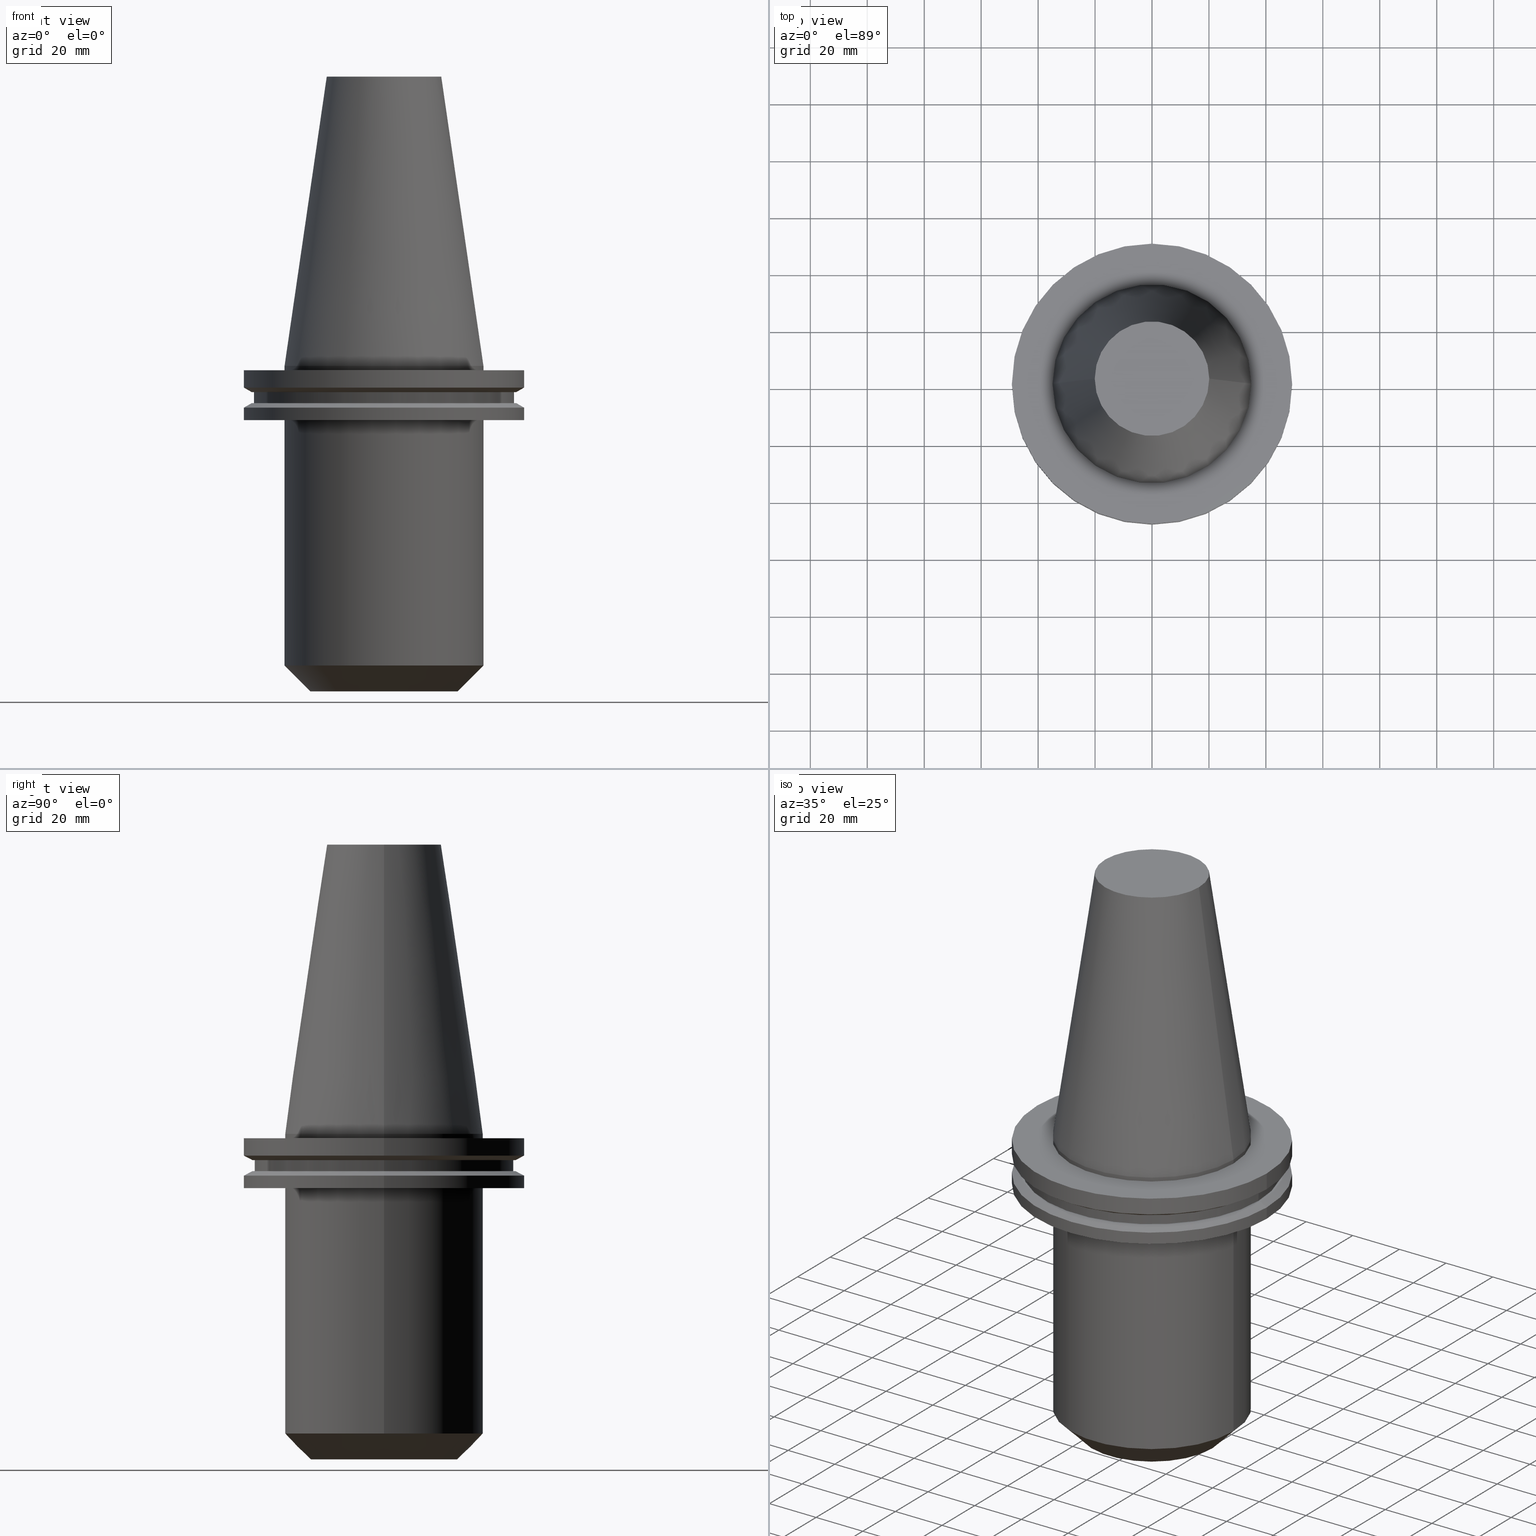
[diagram: canonical four-view strip — front | top / right | iso, engineering-drawing reading convention]
A machine part, canonical four-view strip (front | top / right | iso — engineering-drawing reading convention). The complete STEP part file that produces these views, byte-faithful:
ISO-10303-21;
HEADER;
FILE_DESCRIPTION (( 'STEP AP203' ),
    '1' );
FILE_NAME ('BCV50-EM1_500-4_5.stp',
    '2022-03-03T16:48:07',
    ( '' ),
    ( '' ),
    'SwSTEP 2.0',
    'SolidWorks 2021',
    '' );
FILE_SCHEMA (( 'CONFIG_CONTROL_DESIGN' ));
ENDSEC;

DATA;
#1 = CARTESIAN_POINT ( 'NONE',  ( 0.000000000000000000, 0.000000000000000000, 0.000000000000000000 ) ) ;
#2 = ORIENTED_EDGE ( 'NONE', *, *, #412, .T. ) ;
#3 = APPROVAL ( #360, 'UNSPECIFIED' ) ;
#4 = DIRECTION ( 'NONE',  ( 1.000000000000000000, 0.000000000000000000, 0.000000000000000000 ) ) ;
#5 = DIRECTION ( 'NONE',  ( 1.000000000000000000, 0.000000000000000000, 0.000000000000000000 ) ) ;
#6 = ORIENTED_EDGE ( 'NONE', *, *, #525, .T. ) ;
#7 = EDGE_CURVE ( 'NONE', #391, #542, #632, .T. ) ;
#8 = PERSON_AND_ORGANIZATION ( #341, #121 ) ;
#9 = CARTESIAN_POINT ( 'NONE',  ( -49.21499999999998920, 0.000000000000000000, -14.65761014474876944 ) ) ;
#10 = VERTEX_POINT ( 'NONE', #429 ) ;
#11 = AXIS2_PLACEMENT_3D ( 'NONE', #187, #664, #620 ) ;
#12 = SECURITY_CLASSIFICATION_LEVEL ( 'unclassified' ) ;
#13 = ADVANCED_FACE ( 'NONE', ( #207 ), #146, .T. ) ;
#14 = DIRECTION ( 'NONE',  ( 0.8660254037844273833, 0.000000000000000000, 0.5000000000000195399 ) ) ;
#15 = EDGE_LOOP ( 'NONE', ( #613, #34 ) ) ;
#16 = VERTEX_POINT ( 'NONE', #137 ) ;
#17 = CALENDAR_DATE ( 2022, 3, 3 ) ;
#18 = PLANE ( 'NONE',  #142 ) ;
#19 = LINE ( 'NONE', #621, #660 ) ;
#20 = ORIENTED_EDGE ( 'NONE', *, *, #452, .F. ) ;
#21 = APPROVAL_DATE_TIME ( #256, #338 ) ;
#22 = CIRCLE ( 'NONE', #209, 45.64500000000000313 ) ;
#23 = CARTESIAN_POINT ( 'NONE',  ( 0.000000000000000000, 0.000000000000000000, -13.05499999999999794 ) ) ;
#24 = ORIENTED_EDGE ( 'NONE', *, *, #644, .T. ) ;
#25 = EDGE_CURVE ( 'NONE', #130, #663, #19, .T. ) ;
#26 =( GEOMETRIC_REPRESENTATION_CONTEXT ( 3 ) GLOBAL_UNCERTAINTY_ASSIGNED_CONTEXT ( ( #358 ) ) GLOBAL_UNIT_ASSIGNED_CONTEXT ( ( #289, #175, #292 ) ) REPRESENTATION_CONTEXT ( 'NONE', 'WORKASPACE' ) );
#27 = EDGE_LOOP ( 'NONE', ( #597, #552, #155, #426 ) ) ;
#28 = PERSON_AND_ORGANIZATION ( #341, #121 ) ;
#29 = CARTESIAN_POINT ( 'NONE',  ( 46.43919780457007818, 0.000000000000000000, -9.204999999999991189 ) ) ;
#30 = DIRECTION ( 'NONE',  ( 1.000000000000000000, 0.000000000000000000, 0.000000000000000000 ) ) ;
#31 = VERTEX_POINT ( 'NONE', #93 ) ;
#32 = DIRECTION ( 'NONE',  ( 0.000000000000000000, 0.000000000000000000, -1.000000000000000000 ) ) ;
#33 = DIRECTION ( 'NONE',  ( 1.000000000000000000, 0.000000000000000000, 0.000000000000000000 ) ) ;
#34 = ORIENTED_EDGE ( 'NONE', *, *, #48, .T. ) ;
#35 = ADVANCED_FACE ( 'NONE', ( #202 ), #318, .F. ) ;
#36 = CARTESIAN_POINT ( 'NONE',  ( 34.92499999999999005, 0.000000000000000000, -1.499999999999987566 ) ) ;
#37 = CYLINDRICAL_SURFACE ( 'NONE', #683, 49.21499999999998920 ) ;
#38 = CIRCLE ( 'NONE', #592, 34.92499999999999005 ) ;
#39 = AXIS2_PLACEMENT_3D ( 'NONE', #524, #465, #701 ) ;
#40 = DIRECTION ( 'NONE',  ( -0.000000000000000000, -0.000000000000000000, 1.000000000000000000 ) ) ;
#41 = CC_DESIGN_DATE_AND_TIME_ASSIGNMENT ( #548, #420, ( #329 ) ) ;
#42 = FACE_OUTER_BOUND ( 'NONE', #27, .T. ) ;
#43 = CARTESIAN_POINT ( 'NONE',  ( 0.000000000000000000, 0.000000000000000000, -13.05499999999999794 ) ) ;
#44 = DIRECTION ( 'NONE',  ( -0.000000000000000000, -0.000000000000000000, 1.000000000000000000 ) ) ;
#45 = AXIS2_PLACEMENT_3D ( 'NONE', #352, #298, #349 ) ;
#46 = FACE_OUTER_BOUND ( 'NONE', #152, .T. ) ;
#47 = CARTESIAN_POINT ( 'NONE',  ( 49.21499999999999631, 0.000000000000000000, 101.5999999999999943 ) ) ;
#48 = EDGE_CURVE ( 'NONE', #362, #555, #697, .T. ) ;
#49 = ORIENTED_EDGE ( 'NONE', *, *, #306, .F. ) ;
#50 = CC_DESIGN_APPROVAL ( #3, ( #329 ) ) ;
#51 = CARTESIAN_POINT ( 'NONE',  ( 0.000000000000000000, 49.21499999999998920, -19.04999999999999716 ) ) ;
#52 = VECTOR ( 'NONE', #455, 999.9999999999998863 ) ;
#53 = DIRECTION ( 'NONE',  ( -0.000000000000000000, -0.000000000000000000, 1.000000000000000000 ) ) ;
#54 = CARTESIAN_POINT ( 'NONE',  ( 34.92499999999999716, 0.000000000000000000, -19.04999999999999716 ) ) ;
#55 = VERTEX_POINT ( 'NONE', #380 ) ;
#56 = ADVANCED_FACE ( 'NONE', ( #315 ), #141, .T. ) ;
#57 = CARTESIAN_POINT ( 'NONE',  ( -25.82499999999994955, 3.719864652410080914E-15, -114.2999999999999972 ) ) ;
#58 = VERTEX_POINT ( 'NONE', #602 ) ;
#59 = VECTOR ( 'NONE', #506, 1000.000000000000000 ) ;
#60 = DIRECTION ( 'NONE',  ( -0.000000000000000000, -0.000000000000000000, 1.000000000000000000 ) ) ;
#61 = CC_DESIGN_PERSON_AND_ORGANIZATION_ASSIGNMENT ( #28, #321, ( #71 ) ) ;
#62 = ORIENTED_EDGE ( 'NONE', *, *, #709, .F. ) ;
#63 = DATE_AND_TIME ( #640, #386 ) ;
#64 = DIRECTION ( 'NONE',  ( -0.000000000000000000, -0.000000000000000000, 1.000000000000000000 ) ) ;
#65 = EDGE_LOOP ( 'NONE', ( #259, #302, #430, #295 ) ) ;
#66 = CARTESIAN_POINT ( 'NONE',  ( 0.000000000000000000, 0.000000000000000000, 0.000000000000000000 ) ) ;
#67 = APPROVAL ( #190, 'UNSPECIFIED' ) ;
#68 = EDGE_LOOP ( 'NONE', ( #350, #310, #316, #204 ) ) ;
#69 = VECTOR ( 'NONE', #281, 1000.000000000000000 ) ;
#70 = CALENDAR_DATE ( 2022, 3, 3 ) ;
#71 = SECURITY_CLASSIFICATION ( '', '', #12 ) ;
#72 = CARTESIAN_POINT ( 'NONE',  ( 0.000000000000000000, 0.000000000000000000, 0.000000000000000000 ) ) ;
#73 = ADVANCED_BREP_SHAPE_REPRESENTATION ( 'BCV50-EM1_500-4_5', ( #203, #617 ), #26 ) ;
#74 = DIRECTION ( 'NONE',  ( 0.000000000000000000, 0.000000000000000000, -1.000000000000000000 ) ) ;
#75 = AXIS2_PLACEMENT_3D ( 'NONE', #51, #475, #533 ) ;
#76 = ORIENTED_EDGE ( 'NONE', *, *, #459, .F. ) ;
#77 = PERSON_AND_ORGANIZATION ( #341, #121 ) ;
#78 = DIRECTION ( 'NONE',  ( -0.000000000000000000, -0.000000000000000000, 1.000000000000000000 ) ) ;
#79 = EDGE_LOOP ( 'NONE', ( #609, #185, #618, #269 ) ) ;
#80 = ORIENTED_EDGE ( 'NONE', *, *, #253, .T. ) ;
#81 = CARTESIAN_POINT ( 'NONE',  ( -49.21499999999998920, 6.027099222003697037E-15, -19.04999999999999716 ) ) ;
#82 = ADVANCED_FACE ( 'NONE', ( #324 ), #734, .T. ) ;
#83 = ORIENTED_EDGE ( 'NONE', *, *, #644, .F. ) ;
#84 = ORIENTED_EDGE ( 'NONE', *, *, #343, .T. ) ;
#85 = CIRCLE ( 'NONE', #745, 45.64500000000000313 ) ;
#86 = CARTESIAN_POINT ( 'NONE',  ( -49.21499999999998920, 6.027099222003697037E-15, -14.65761014474876944 ) ) ;
#87 = ADVANCED_FACE ( 'NONE', ( #265 ), #742, .T. ) ;
#88 = DIRECTION ( 'NONE',  ( 1.000000000000000000, 0.000000000000000000, 0.000000000000000000 ) ) ;
#89 = APPLICATION_CONTEXT ( 'configuration controlled 3d designs of mechanical parts and assemblies' ) ;
#90 = VECTOR ( 'NONE', #392, 1000.000000000000114 ) ;
#91 = ORIENTED_EDGE ( 'NONE', *, *, #662, .T. ) ;
#92 = DIRECTION ( 'NONE',  ( -0.000000000000000000, -0.000000000000000000, 1.000000000000000000 ) ) ;
#93 = CARTESIAN_POINT ( 'NONE',  ( -46.43919780457007818, 0.000000000000000000, -13.05499999999999794 ) ) ;
#94 = EDGE_CURVE ( 'NONE', #464, #362, #514, .T. ) ;
#95 = ORIENTED_EDGE ( 'NONE', *, *, #277, .F. ) ;
#96 = DIRECTION ( 'NONE',  ( -1.000000000000000000, 0.000000000000000000, 0.000000000000000000 ) ) ;
#97 = CARTESIAN_POINT ( 'NONE',  ( 0.000000000000000000, 0.000000000000000000, 101.5999999999999943 ) ) ;
#98 = ORIENTED_EDGE ( 'NONE', *, *, #572, .F. ) ;
#99 = LINE ( 'NONE', #396, #323 ) ;
#100 = DIRECTION ( 'NONE',  ( 1.000000000000000000, 0.000000000000000000, 0.000000000000000000 ) ) ;
#101 = VECTOR ( 'NONE', #636, 1000.000000000000000 ) ;
#102 = LINE ( 'NONE', #513, #90 ) ;
#103 = CARTESIAN_POINT ( 'NONE',  ( 0.000000000000000000, 0.000000000000000000, 101.5999999999999801 ) ) ;
#104 = CARTESIAN_POINT ( 'NONE',  ( -34.92499999999999005, 4.277078946022130098E-15, 101.5999999999999943 ) ) ;
#105 = DIRECTION ( 'NONE',  ( 1.000000000000000000, 0.000000000000000000, 0.000000000000000000 ) ) ;
#106 = ADVANCED_FACE ( 'NONE', ( #397, #165 ), #628, .F. ) ;
#107 = DIRECTION ( 'NONE',  ( 0.000000000000000000, -0.000000000000000000, 1.000000000000000000 ) ) ;
#108 = CARTESIAN_POINT ( 'NONE',  ( 49.21499999999998920, 6.027099222003697037E-15, -14.65761014474876944 ) ) ;
#109 = CIRCLE ( 'NONE', #600, 45.64500000000000313 ) ;
#110 = AXIS2_PLACEMENT_3D ( 'NONE', #97, #399, #105 ) ;
#111 = PERSON_AND_ORGANIZATION ( #341, #121 ) ;
#112 = DIRECTION ( 'NONE',  ( 0.8660254037844169472, 1.060575238724880168E-16, -0.5000000000000375255 ) ) ;
#113 = ORIENTED_EDGE ( 'NONE', *, *, #7, .T. ) ;
#114 = EDGE_CURVE ( 'NONE', #433, #639, #38, .T. ) ;
#115 = CARTESIAN_POINT ( 'NONE',  ( 0.000000000000000000, 0.000000000000000000, 101.5999999999999943 ) ) ;
#116 = DIRECTION ( 'NONE',  ( 1.000000000000000000, 0.000000000000000000, 0.000000000000000000 ) ) ;
#117 = DIRECTION ( 'NONE',  ( 0.000000000000000000, 0.000000000000000000, 1.000000000000000000 ) ) ;
#118 = DIRECTION ( 'NONE',  ( 1.000000000000000000, 0.000000000000000000, 0.000000000000000000 ) ) ;
#119 = ORIENTED_EDGE ( 'NONE', *, *, #666, .T. ) ;
#120 = VECTOR ( 'NONE', #461, 1000.000000000000000 ) ;
#121 = ORGANIZATION ( 'UNSPECIFIED', 'UNSPECIFIED', '' ) ;
#122 = COORDINATED_UNIVERSAL_TIME_OFFSET ( 6, 0, .BEHIND. ) ;
#123 = VECTOR ( 'NONE', #379, 1000.000000000000000 ) ;
#124 = DIRECTION ( 'NONE',  ( 1.000000000000000000, 0.000000000000000000, 0.000000000000000000 ) ) ;
#125 = ORIENTED_EDGE ( 'NONE', *, *, #131, .T. ) ;
#126 = CARTESIAN_POINT ( 'NONE',  ( 0.000000000000000000, 46.43919780457007818, -9.204999999999998295 ) ) ;
#127 = EDGE_CURVE ( 'NONE', #418, #55, #567, .T. ) ;
#128 = ORIENTED_EDGE ( 'NONE', *, *, #211, .T. ) ;
#129 = DIRECTION ( 'NONE',  ( 1.000000000000000000, 0.000000000000000000, 0.000000000000000000 ) ) ;
#130 = VERTEX_POINT ( 'NONE', #746 ) ;
#131 = EDGE_CURVE ( 'NONE', #262, #422, #731, .T. ) ;
#132 = FACE_OUTER_BOUND ( 'NONE', #258, .T. ) ;
#133 = CARTESIAN_POINT ( 'NONE',  ( 0.000000000000000000, 0.000000000000000000, -1.499999999999987566 ) ) ;
#134 = VERTEX_POINT ( 'NONE', #694 ) ;
#135 = ADVANCED_FACE ( 'NONE', ( #42 ), #456, .T. ) ;
#136 = DIRECTION ( 'NONE',  ( -0.000000000000000000, -0.000000000000000000, 1.000000000000000000 ) ) ;
#137 = CARTESIAN_POINT ( 'NONE',  ( 46.43919780457007818, 5.857130358318725715E-15, -13.05499999999999794 ) ) ;
#138 = ORIENTED_EDGE ( 'NONE', *, *, #267, .T. ) ;
#139 = EDGE_CURVE ( 'NONE', #679, #274, #346, .T. ) ;
#140 = CARTESIAN_POINT ( 'NONE',  ( -34.92499999999999005, 4.277078946022130098E-15, -1.499999999999987566 ) ) ;
#141 = CYLINDRICAL_SURFACE ( 'NONE', #359, 34.92499999999999005 ) ;
#142 = AXIS2_PLACEMENT_3D ( 'NONE', #382, #729, #502 ) ;
#143 = VERTEX_POINT ( 'NONE', #151 ) ;
#144 = DIRECTION ( 'NONE',  ( 1.000000000000000000, 0.000000000000000000, 0.000000000000000000 ) ) ;
#145 = AXIS2_PLACEMENT_3D ( 'NONE', #221, #401, #510 ) ;
#146 = CYLINDRICAL_SURFACE ( 'NONE', #496, 34.92499999999999716 ) ;
#147 = EDGE_CURVE ( 'NONE', #509, #504, #339, .T. ) ;
#148 = AXIS2_PLACEMENT_3D ( 'NONE', #72, #554, #741 ) ;
#149 = ORIENTED_EDGE ( 'NONE', *, *, #773, .T. ) ;
#150 = DIRECTION ( 'NONE',  ( 1.000000000000000000, 0.000000000000000000, 0.000000000000000000 ) ) ;
#151 = CARTESIAN_POINT ( 'NONE',  ( -45.64500000000000313, 5.589900314708094957E-15, -13.05499999999999794 ) ) ;
#152 = EDGE_LOOP ( 'NONE', ( #707, #174, #2, #711 ) ) ;
#153 = CARTESIAN_POINT ( 'NONE',  ( 0.000000000000000000, 0.000000000000000000, -14.65761014474876944 ) ) ;
#154 = DIRECTION ( 'NONE',  ( 1.000000000000000000, 0.000000000000000000, 0.000000000000000000 ) ) ;
#155 = ORIENTED_EDGE ( 'NONE', *, *, #253, .F. ) ;
#156 = DIRECTION ( 'NONE',  ( -0.000000000000000000, -0.000000000000000000, 1.000000000000000000 ) ) ;
#157 = AXIS2_PLACEMENT_3D ( 'NONE', #451, #566, #393 ) ;
#158 = DIRECTION ( 'NONE',  ( -0.000000000000000000, -0.000000000000000000, 1.000000000000000000 ) ) ;
#159 = APPROVAL_PERSON_ORGANIZATION ( #416, #3, #654 ) ;
#160 = VECTOR ( 'NONE', #693, 1000.000000000000000 ) ;
#161 = EDGE_CURVE ( 'NONE', #274, #679, #728, .T. ) ;
#162 = FACE_OUTER_BOUND ( 'NONE', #473, .T. ) ;
#163 = DIRECTION ( 'NONE',  ( -0.000000000000000000, -0.000000000000000000, 1.000000000000000000 ) ) ;
#164 = CARTESIAN_POINT ( 'NONE',  ( 34.92499999999999005, 4.277078946022130098E-15, 0.000000000000000000 ) ) ;
#165 = FACE_OUTER_BOUND ( 'NONE', #544, .T. ) ;
#166 = PERSON_AND_ORGANIZATION_ROLE ( 'design_owner' ) ;
#167 = DIRECTION ( 'NONE',  ( -0.000000000000000000, -0.000000000000000000, 1.000000000000000000 ) ) ;
#168 = AXIS2_PLACEMENT_3D ( 'NONE', #571, #44, #279 ) ;
#169 = EDGE_CURVE ( 'NONE', #291, #719, #541, .T. ) ;
#170 = LOCAL_TIME ( 10, 48, 7.000000000000000000, #423 ) ;
#171 = CYLINDRICAL_SURFACE ( 'NONE', #39, 34.92499999999999716 ) ;
#172 = AXIS2_PLACEMENT_3D ( 'NONE', #677, #92, #696 ) ;
#173 = CARTESIAN_POINT ( 'NONE',  ( 0.000000000000000000, 0.000000000000000000, 101.5999999999999943 ) ) ;
#174 = ORIENTED_EDGE ( 'NONE', *, *, #299, .T. ) ;
#175 =( NAMED_UNIT ( * ) PLANE_ANGLE_UNIT ( ) SI_UNIT ( $, .RADIAN. ) );
#176 = DIRECTION ( 'NONE',  ( 1.000000000000000000, 0.000000000000000000, 0.000000000000000000 ) ) ;
#177 = EDGE_LOOP ( 'NONE', ( #125, #6 ) ) ;
#178 = PLANE ( 'NONE',  #220 ) ;
#179 = EDGE_LOOP ( 'NONE', ( #233, #251, #91, #198 ) ) ;
#180 = AXIS2_PLACEMENT_3D ( 'NONE', #467, #772, #705 ) ;
#181 = APPROVAL_PERSON_ORGANIZATION ( #8, #338, #363 ) ;
#182 = CARTESIAN_POINT ( 'NONE',  ( -45.64500000000000313, 5.589900314708094957E-15, 101.5999999999999943 ) ) ;
#183 = CIRCLE ( 'NONE', #642, 49.21499999999998920 ) ;
#184 = DIRECTION ( 'NONE',  ( -0.000000000000000000, -0.000000000000000000, 1.000000000000000000 ) ) ;
#185 = ORIENTED_EDGE ( 'NONE', *, *, #505, .T. ) ;
#186 = APPROVAL_STATUS ( 'not_yet_approved' ) ;
#187 = CARTESIAN_POINT ( 'NONE',  ( 0.000000000000000000, 0.000000000000000000, -35.04999999999999716 ) ) ;
#188 = CC_DESIGN_PERSON_AND_ORGANIZATION_ASSIGNMENT ( #111, #740, ( #329 ) ) ;
#189 = VERTEX_POINT ( 'NONE', #520 ) ;
#190 = APPROVAL_STATUS ( 'not_yet_approved' ) ;
#191 = CYLINDRICAL_SURFACE ( 'NONE', #247, 19.04999999999999005 ) ;
#192 = ORIENTED_EDGE ( 'NONE', *, *, #452, .T. ) ;
#193 = EDGE_CURVE ( 'NONE', #639, #433, #588, .T. ) ;
#194 = ORIENTED_EDGE ( 'NONE', *, *, #692, .T. ) ;
#195 = SHAPE_DEFINITION_REPRESENTATION ( #466, #73 ) ;
#196 = CARTESIAN_POINT ( 'NONE',  ( -19.04999999999999005, 2.332952152375706466E-15, 0.000000000000000000 ) ) ;
#197 = CIRCLE ( 'NONE', #543, 20.10819343178871321 ) ;
#198 = ORIENTED_EDGE ( 'NONE', *, *, #501, .F. ) ;
#199 = ORIENTED_EDGE ( 'NONE', *, *, #131, .F. ) ;
#200 = DATE_AND_TIME ( #70, #443 ) ;
#201 = DIRECTION ( 'NONE',  ( 1.000000000000000000, 0.000000000000000000, 0.000000000000000000 ) ) ;
#202 = FACE_OUTER_BOUND ( 'NONE', #333, .T. ) ;
#203 = MANIFOLD_SOLID_BREP ( 'EM', #674 ) ;
#204 = ORIENTED_EDGE ( 'NONE', *, *, #355, .F. ) ;
#205 = ADVANCED_FACE ( 'NONE', ( #446 ), #37, .T. ) ;
#206 = DIRECTION ( 'NONE',  ( -0.000000000000000000, -0.000000000000000000, 1.000000000000000000 ) ) ;
#207 = FACE_OUTER_BOUND ( 'NONE', #726, .T. ) ;
#208 = ORIENTED_EDGE ( 'NONE', *, *, #343, .F. ) ;
#209 = AXIS2_PLACEMENT_3D ( 'NONE', #402, #216, #287 ) ;
#210 = CYLINDRICAL_SURFACE ( 'NONE', #307, 45.64500000000000313 ) ;
#211 = EDGE_CURVE ( 'NONE', #58, #612, #653, .T. ) ;
#212 = LINE ( 'NONE', #47, #69 ) ;
#213 = AXIS2_PLACEMENT_3D ( 'NONE', #522, #770, #462 ) ;
#214 = ORIENTED_EDGE ( 'NONE', *, *, #267, .F. ) ;
#215 = CARTESIAN_POINT ( 'NONE',  ( 0.000000000000000000, 0.000000000000000000, -1.499999999999987566 ) ) ;
#216 = DIRECTION ( 'NONE',  ( -0.000000000000000000, -0.000000000000000000, 1.000000000000000000 ) ) ;
#217 = CARTESIAN_POINT ( 'NONE',  ( 19.04999999999998650, 0.000000000000000000, -114.2999999999999972 ) ) ;
#218 = CARTESIAN_POINT ( 'NONE',  ( 0.000000000000000000, 45.64500000000000313, -13.05499999999999794 ) ) ;
#219 = EDGE_CURVE ( 'NONE', #663, #458, #22, .T. ) ;
#220 = AXIS2_PLACEMENT_3D ( 'NONE', #126, #656, #364 ) ;
#221 = CARTESIAN_POINT ( 'NONE',  ( 0.000000000000000000, 0.000000000000000000, -14.65761014474876944 ) ) ;
#222 = CIRCLE ( 'NONE', #305, 34.92499999999999005 ) ;
#223 = DIRECTION ( 'NONE',  ( 1.000000000000000000, 0.000000000000000000, 0.000000000000000000 ) ) ;
#224 = VECTOR ( 'NONE', #260, 999.9999999999998863 ) ;
#225 = CARTESIAN_POINT ( 'NONE',  ( 0.000000000000000000, 0.000000000000000000, -114.2999999999999972 ) ) ;
#226 = DIRECTION ( 'NONE',  ( -0.000000000000000000, -0.000000000000000000, 1.000000000000000000 ) ) ;
#227 = EDGE_CURVE ( 'NONE', #10, #555, #212, .T. ) ;
#228 = CARTESIAN_POINT ( 'NONE',  ( 0.000000000000000000, 0.000000000000000000, -114.2999999999999972 ) ) ;
#229 = AXIS2_PLACEMENT_3D ( 'NONE', #421, #60, #5 ) ;
#230 = CARTESIAN_POINT ( 'NONE',  ( -46.43919780457007818, 5.857130358318727293E-15, -9.204999999999991189 ) ) ;
#231 = DIRECTION ( 'NONE',  ( 1.000000000000000000, 0.000000000000000000, 0.000000000000000000 ) ) ;
#232 = VECTOR ( 'NONE', #64, 1000.000000000000000 ) ;
#233 = ORIENTED_EDGE ( 'NONE', *, *, #666, .F. ) ;
#234 = LOCAL_TIME ( 10, 48, 7.000000000000000000, #311 ) ;
#235 = CIRCLE ( 'NONE', #388, 46.43919780457007818 ) ;
#236 = AXIS2_PLACEMENT_3D ( 'NONE', #488, #74, #684 ) ;
#237 = LINE ( 'NONE', #537, #232 ) ;
#238 = EDGE_LOOP ( 'NONE', ( #723, #564, #328, #83 ) ) ;
#239 = EDGE_CURVE ( 'NONE', #719, #464, #763, .T. ) ;
#240 = CARTESIAN_POINT ( 'NONE',  ( -25.82499999999994955, 3.162650358798033308E-15, -114.2999999999999972 ) ) ;
#241 = EDGE_CURVE ( 'NONE', #16, #189, #700, .T. ) ;
#242 = FACE_BOUND ( 'NONE', #177, .T. ) ;
#243 = AXIS2_PLACEMENT_3D ( 'NONE', #558, #431, #487 ) ;
#244 = FACE_OUTER_BOUND ( 'NONE', #527, .T. ) ;
#245 = ORIENTED_EDGE ( 'NONE', *, *, #241, .F. ) ;
#246 = AXIS2_PLACEMENT_3D ( 'NONE', #476, #407, #176 ) ;
#247 = AXIS2_PLACEMENT_3D ( 'NONE', #681, #136, #303 ) ;
#248 = DATE_TIME_ROLE ( 'classification_date' ) ;
#249 = AXIS2_PLACEMENT_3D ( 'NONE', #23, #206, #129 ) ;
#250 = FACE_OUTER_BOUND ( 'NONE', #747, .T. ) ;
#251 = ORIENTED_EDGE ( 'NONE', *, *, #241, .T. ) ;
#252 = CARTESIAN_POINT ( 'NONE',  ( 0.000000000000000000, 0.000000000000000000, -14.65761014474876944 ) ) ;
#253 = EDGE_CURVE ( 'NONE', #563, #774, #222, .T. ) ;
#254 = ORIENTED_EDGE ( 'NONE', *, *, #161, .T. ) ;
#255 = EDGE_LOOP ( 'NONE', ( #326, #658, #80, #730 ) ) ;
#256 = DATE_AND_TIME ( #17, #170 ) ;
#257 = CARTESIAN_POINT ( 'NONE',  ( 49.21499999999998920, 0.000000000000000000, -19.04999999999999716 ) ) ;
#258 = EDGE_LOOP ( 'NONE', ( #304, #408, #24, #20 ) ) ;
#259 = ORIENTED_EDGE ( 'NONE', *, *, #580, .T. ) ;
#260 = DIRECTION ( 'NONE',  ( -0.1443082272672999988, 0.000000000000000000, -0.9895327864921755756 ) ) ;
#261 = EDGE_LOOP ( 'NONE', ( #499, #353 ) ) ;
#262 = VERTEX_POINT ( 'NONE', #54 ) ;
#263 = PERSON_AND_ORGANIZATION_ROLE ( 'design_supplier' ) ;
#264 = DIRECTION ( 'NONE',  ( 1.000000000000000000, 0.000000000000000000, 0.000000000000000000 ) ) ;
#265 = FACE_OUTER_BOUND ( 'NONE', #65, .T. ) ;
#266 = EDGE_LOOP ( 'NONE', ( #270, #149, #737, #685 ) ) ;
#267 = EDGE_CURVE ( 'NONE', #542, #391, #759, .T. ) ;
#268 = FACE_OUTER_BOUND ( 'NONE', #738, .T. ) ;
#269 = ORIENTED_EDGE ( 'NONE', *, *, #605, .F. ) ;
#270 = ORIENTED_EDGE ( 'NONE', *, *, #459, .T. ) ;
#271 = CIRCLE ( 'NONE', #704, 49.21499999999998920 ) ;
#272 = CARTESIAN_POINT ( 'NONE',  ( 45.64500000000000313, 0.000000000000000000, -9.204999999999991189 ) ) ;
#273 = DIRECTION ( 'NONE',  ( 1.000000000000000000, 0.000000000000000000, 0.000000000000000000 ) ) ;
#274 = VERTEX_POINT ( 'NONE', #57 ) ;
#275 = DIRECTION ( 'NONE',  ( 1.000000000000000000, 0.000000000000000000, 0.000000000000000000 ) ) ;
#276 = DIRECTION ( 'NONE',  ( 1.000000000000000000, 0.000000000000000000, 0.000000000000000000 ) ) ;
#277 = EDGE_CURVE ( 'NONE', #458, #663, #85, .T. ) ;
#278 = DIRECTION ( 'NONE',  ( -0.000000000000000000, -0.000000000000000000, 1.000000000000000000 ) ) ;
#279 = DIRECTION ( 'NONE',  ( 1.000000000000000000, 0.000000000000000000, 0.000000000000000000 ) ) ;
#280 = FACE_OUTER_BOUND ( 'NONE', #179, .T. ) ;
#281 = DIRECTION ( 'NONE',  ( -0.000000000000000000, -0.000000000000000000, 1.000000000000000000 ) ) ;
#282 = LOCAL_TIME ( 10, 48, 7.000000000000000000, #500 ) ;
#283 = AXIS2_PLACEMENT_3D ( 'NONE', #691, #754, #154 ) ;
#284 = AXIS2_PLACEMENT_3D ( 'NONE', #460, #568, #331 ) ;
#285 = EDGE_CURVE ( 'NONE', #274, #542, #590, .T. ) ;
#286 = DIRECTION ( 'NONE',  ( 1.000000000000000000, 0.000000000000000000, 0.000000000000000000 ) ) ;
#287 = DIRECTION ( 'NONE',  ( 1.000000000000000000, 0.000000000000000000, 0.000000000000000000 ) ) ;
#288 = CC_DESIGN_DATE_AND_TIME_ASSIGNMENT ( #435, #248, ( #71 ) ) ;
#289 =( LENGTH_UNIT ( ) NAMED_UNIT ( * ) SI_UNIT ( .MILLI., .METRE. ) );
#290 = CARTESIAN_POINT ( 'NONE',  ( -49.21499999999999631, 6.027099222003697826E-15, -1.499999999999987566 ) ) ;
#291 = VERTEX_POINT ( 'NONE', #301 ) ;
#292 =( NAMED_UNIT ( * ) SI_UNIT ( $, .STERADIAN. ) SOLID_ANGLE_UNIT ( ) );
#293 = CARTESIAN_POINT ( 'NONE',  ( 0.000000000000000000, 0.000000000000000000, -19.04999999999999716 ) ) ;
#294 = VECTOR ( 'NONE', #631, 1000.000000000000000 ) ;
#295 = ORIENTED_EDGE ( 'NONE', *, *, #227, .F. ) ;
#296 = AXIS2_PLACEMENT_3D ( 'NONE', #624, #32, #96 ) ;
#297 = PERSON_AND_ORGANIZATION ( #341, #121 ) ;
#298 = DIRECTION ( 'NONE',  ( 0.000000000000000000, 0.000000000000000000, -1.000000000000000000 ) ) ;
#299 = EDGE_CURVE ( 'NONE', #719, #291, #508, .T. ) ;
#300 = EDGE_LOOP ( 'NONE', ( #381, #752, #755, #623 ) ) ;
#301 = CARTESIAN_POINT ( 'NONE',  ( 46.43919780457007818, 0.000000000000000000, -9.204999999999991189 ) ) ;
#302 = ORIENTED_EDGE ( 'NONE', *, *, #94, .T. ) ;
#303 = DIRECTION ( 'NONE',  ( 1.000000000000000000, 0.000000000000000000, 0.000000000000000000 ) ) ;
#304 = ORIENTED_EDGE ( 'NONE', *, *, #147, .F. ) ;
#305 = AXIS2_PLACEMENT_3D ( 'NONE', #66, #646, #116 ) ;
#306 = EDGE_CURVE ( 'NONE', #449, #134, #576, .T. ) ;
#307 = AXIS2_PLACEMENT_3D ( 'NONE', #633, #565, #275 ) ;
#308 = FACE_OUTER_BOUND ( 'NONE', #79, .T. ) ;
#309 = CARTESIAN_POINT ( 'NONE',  ( 0.000000000000000000, 0.000000000000000000, -9.204999999999991189 ) ) ;
#310 = ORIENTED_EDGE ( 'NONE', *, *, #114, .T. ) ;
#311 = COORDINATED_UNIVERSAL_TIME_OFFSET ( 6, 0, .BEHIND. ) ;
#312 = CC_DESIGN_PERSON_AND_ORGANIZATION_ASSIGNMENT ( #297, #166, ( #647 ) ) ;
#313 = APPLICATION_CONTEXT ( 'configuration controlled 3d designs of mechanical parts and assemblies' ) ;
#314 = FACE_BOUND ( 'NONE', #373, .T. ) ;
#315 = FACE_OUTER_BOUND ( 'NONE', #68, .T. ) ;
#316 = ORIENTED_EDGE ( 'NONE', *, *, #334, .T. ) ;
#317 = CARTESIAN_POINT ( 'NONE',  ( 0.000000000000000000, 0.000000000000000000, -7.602389855251287187 ) ) ;
#318 = PLANE ( 'NONE',  #236 ) ;
#319 = EDGE_CURVE ( 'NONE', #143, #130, #109, .T. ) ;
#320 = EDGE_LOOP ( 'NONE', ( #486, #608, #733, #438 ) ) ;
#321 = PERSON_AND_ORGANIZATION_ROLE ( 'classification_officer' ) ;
#322 = LINE ( 'NONE', #436, #224 ) ;
#323 = VECTOR ( 'NONE', #156, 1000.000000000000000 ) ;
#324 = FACE_OUTER_BOUND ( 'NONE', #320, .T. ) ;
#325 = EDGE_CURVE ( 'NONE', #440, #509, #271, .T. ) ;
#326 = ORIENTED_EDGE ( 'NONE', *, *, #127, .F. ) ;
#327 = DIRECTION ( 'NONE',  ( 1.000000000000000000, 0.000000000000000000, 0.000000000000000000 ) ) ;
#328 = ORIENTED_EDGE ( 'NONE', *, *, #662, .F. ) ;
#329 = PRODUCT_DEFINITION ( 'UNKNOWN', '', #601, #560 ) ;
#330 = ORIENTED_EDGE ( 'NONE', *, *, #219, .T. ) ;
#331 = DIRECTION ( 'NONE',  ( 1.000000000000000000, 0.000000000000000000, 0.000000000000000000 ) ) ;
#332 = CARTESIAN_POINT ( 'NONE',  ( 0.000000000000000000, 0.000000000000000000, -19.04999999999999716 ) ) ;
#333 = EDGE_LOOP ( 'NONE', ( #591, #385 ) ) ;
#334 = EDGE_CURVE ( 'NONE', #639, #563, #237, .T. ) ;
#335 = DIRECTION ( 'NONE',  ( -0.000000000000000000, -0.000000000000000000, 1.000000000000000000 ) ) ;
#336 = CARTESIAN_POINT ( 'NONE',  ( 0.000000000000000000, 0.000000000000000000, -114.2999999999999972 ) ) ;
#337 = DIRECTION ( 'NONE',  ( 1.000000000000000000, 0.000000000000000000, 0.000000000000000000 ) ) ;
#338 = APPROVAL ( #186, 'UNSPECIFIED' ) ;
#339 = LINE ( 'NONE', #342, #294 ) ;
#340 = LINE ( 'NONE', #753, #160 ) ;
#341 = PERSON ( 'UNSPECIFIED', 'UNSPECIFIED', 'UNSPECIFIED', ('UNSPECIFIED'), ('UNSPECIFIED'), ('UNSPECIFIED') ) ;
#342 = CARTESIAN_POINT ( 'NONE',  ( -49.21499999999998920, 6.027099222003697037E-15, 101.5999999999999943 ) ) ;
#343 = EDGE_CURVE ( 'NONE', #391, #262, #479, .T. ) ;
#344 = CARTESIAN_POINT ( 'NONE',  ( -49.21499999999999631, 6.027099222003697826E-15, 101.5999999999999943 ) ) ;
#345 = ADVANCED_FACE ( 'NONE', ( #410, #583 ), #523, .F. ) ;
#346 = CIRCLE ( 'NONE', #447, 25.82499999999994955 ) ;
#347 = VECTOR ( 'NONE', #40, 1000.000000000000000 ) ;
#348 = FACE_OUTER_BOUND ( 'NONE', #377, .T. ) ;
#349 = DIRECTION ( 'NONE',  ( -1.000000000000000000, 0.000000000000000000, -0.000000000000000000 ) ) ;
#350 = ORIENTED_EDGE ( 'NONE', *, *, #550, .F. ) ;
#351 = LINE ( 'NONE', #182, #101 ) ;
#352 = CARTESIAN_POINT ( 'NONE',  ( 0.000000000000000000, 49.21499999999999631, -1.499999999999992895 ) ) ;
#353 = ORIENTED_EDGE ( 'NONE', *, *, #366, .F. ) ;
#354 = DIRECTION ( 'NONE',  ( 1.000000000000000000, 0.000000000000000000, 0.000000000000000000 ) ) ;
#355 = EDGE_CURVE ( 'NONE', #774, #563, #743, .T. ) ;
#356 = CARTESIAN_POINT ( 'NONE',  ( 34.92499999999999716, 0.000000000000000000, 101.5999999999999943 ) ) ;
#357 = AXIS2_PLACEMENT_3D ( 'NONE', #698, #226, #273 ) ;
#358 = UNCERTAINTY_MEASURE_WITH_UNIT (LENGTH_MEASURE( 1.000000000000000082E-05 ), #289, 'distance_accuracy_value', 'NONE');
#359 = AXIS2_PLACEMENT_3D ( 'NONE', #384, #616, #88 ) ;
#360 = APPROVAL_STATUS ( 'not_yet_approved' ) ;
#361 = CARTESIAN_POINT ( 'NONE',  ( 0.000000000000000000, 0.000000000000000000, -105.2000000000000028 ) ) ;
#362 = VERTEX_POINT ( 'NONE', #290 ) ;
#363 = APPROVAL_ROLE ( '' ) ;
#364 = DIRECTION ( 'NONE',  ( 1.000000000000000000, 0.000000000000000000, 0.000000000000000000 ) ) ;
#365 = EDGE_LOOP ( 'NONE', ( #330, #604 ) ) ;
#366 = EDGE_CURVE ( 'NONE', #509, #440, #491, .T. ) ;
#367 = ORIENTED_EDGE ( 'NONE', *, *, #299, .F. ) ;
#368 = LINE ( 'NONE', #196, #123 ) ;
#369 = ORIENTED_EDGE ( 'NONE', *, *, #94, .F. ) ;
#370 = VECTOR ( 'NONE', #112, 1000.000000000000114 ) ;
#371 = ADVANCED_FACE ( 'NONE', ( #641, #710 ), #178, .F. ) ;
#372 = CC_DESIGN_APPROVAL ( #67, ( #601 ) ) ;
#373 = EDGE_LOOP ( 'NONE', ( #389, #128 ) ) ;
#374 = CIRCLE ( 'NONE', #619, 46.43919780457007818 ) ;
#375 = FACE_OUTER_BOUND ( 'NONE', #626, .T. ) ;
#376 = DIRECTION ( 'NONE',  ( 1.000000000000000000, 0.000000000000000000, 0.000000000000000000 ) ) ;
#377 = EDGE_LOOP ( 'NONE', ( #113, #725, #199, #208 ) ) ;
#378 = ADVANCED_FACE ( 'NONE', ( #244 ), #716, .T. ) ;
#379 = DIRECTION ( 'NONE',  ( -0.000000000000000000, -0.000000000000000000, 1.000000000000000000 ) ) ;
#380 = CARTESIAN_POINT ( 'NONE',  ( -20.10819343178871321, 0.000000000000000000, 101.5999999999999801 ) ) ;
#381 = ORIENTED_EDGE ( 'NONE', *, *, #139, .T. ) ;
#382 = CARTESIAN_POINT ( 'NONE',  ( 0.000000000000000000, 19.04999999999998650, -114.2999999999999972 ) ) ;
#383 = ADVANCED_FACE ( 'NONE', ( #596 ), #575, .T. ) ;
#384 = CARTESIAN_POINT ( 'NONE',  ( 0.000000000000000000, 0.000000000000000000, 101.5999999999999943 ) ) ;
#385 = ORIENTED_EDGE ( 'NONE', *, *, #127, .T. ) ;
#386 = LOCAL_TIME ( 10, 48, 7.000000000000000000, #122 ) ;
#387 = CARTESIAN_POINT ( 'NONE',  ( 0.000000000000000000, 0.000000000000000000, 101.5999999999999943 ) ) ;
#388 = AXIS2_PLACEMENT_3D ( 'NONE', #43, #278, #450 ) ;
#389 = ORIENTED_EDGE ( 'NONE', *, *, #655, .T. ) ;
#390 = AXIS2_PLACEMENT_3D ( 'NONE', #218, #516, #454 ) ;
#391 = VERTEX_POINT ( 'NONE', #526 ) ;
#392 = DIRECTION ( 'NONE',  ( 0.7071067811865489050, 0.000000000000000000, 0.7071067811865460184 ) ) ;
#393 = DIRECTION ( 'NONE',  ( 1.000000000000000000, 0.000000000000000000, 0.000000000000000000 ) ) ;
#394 = ADVANCED_FACE ( 'NONE', ( #768 ), #712, .T. ) ;
#395 = ORIENTED_EDGE ( 'NONE', *, *, #161, .F. ) ;
#396 = CARTESIAN_POINT ( 'NONE',  ( -34.92499999999999716, 4.277078946022130887E-15, 101.5999999999999943 ) ) ;
#397 = FACE_BOUND ( 'NONE', #689, .T. ) ;
#398 = FACE_OUTER_BOUND ( 'NONE', #587, .T. ) ;
#399 = DIRECTION ( 'NONE',  ( -0.000000000000000000, -0.000000000000000000, 1.000000000000000000 ) ) ;
#400 = AXIS2_PLACEMENT_3D ( 'NONE', #444, #335, #327 ) ;
#401 = DIRECTION ( 'NONE',  ( 0.000000000000000000, 0.000000000000000000, -1.000000000000000000 ) ) ;
#402 = CARTESIAN_POINT ( 'NONE',  ( 0.000000000000000000, 0.000000000000000000, -9.204999999999991189 ) ) ;
#403 = DIRECTION ( 'NONE',  ( -0.000000000000000000, -0.000000000000000000, 1.000000000000000000 ) ) ;
#404 = CARTESIAN_POINT ( 'NONE',  ( 0.000000000000000000, 0.000000000000000000, -1.499999999999987566 ) ) ;
#405 = ADVANCED_FACE ( 'NONE', ( #250, #314 ), #18, .F. ) ;
#406 = APPLICATION_PROTOCOL_DEFINITION ( 'international standard', 'config_control_design', 1994, #313 ) ;
#407 = DIRECTION ( 'NONE',  ( -0.000000000000000000, -0.000000000000000000, 1.000000000000000000 ) ) ;
#408 = ORIENTED_EDGE ( 'NONE', *, *, #366, .T. ) ;
#409 = FACE_OUTER_BOUND ( 'NONE', #261, .T. ) ;
#410 = FACE_BOUND ( 'NONE', #535, .T. ) ;
#411 = ORIENTED_EDGE ( 'NONE', *, *, #655, .F. ) ;
#412 = EDGE_CURVE ( 'NONE', #291, #10, #721, .T. ) ;
#413 = DIRECTION ( 'NONE',  ( -0.000000000000000000, -0.000000000000000000, 1.000000000000000000 ) ) ;
#414 = ORIENTED_EDGE ( 'NONE', *, *, #114, .F. ) ;
#415 = AXIS2_PLACEMENT_3D ( 'NONE', #173, #184, #661 ) ;
#416 = PERSON_AND_ORGANIZATION ( #341, #121 ) ;
#417 = DIRECTION ( 'NONE',  ( -0.000000000000000000, -0.000000000000000000, 1.000000000000000000 ) ) ;
#418 = VERTEX_POINT ( 'NONE', #673 ) ;
#419 = CONICAL_SURFACE ( 'NONE', #145, 49.21499999999998920, 1.047197551196554333 ) ;
#420 = DATE_TIME_ROLE ( 'creation_date' ) ;
#421 = CARTESIAN_POINT ( 'NONE',  ( 0.000000000000000000, 0.000000000000000000, -19.04999999999999716 ) ) ;
#422 = VERTEX_POINT ( 'NONE', #485 ) ;
#423 = COORDINATED_UNIVERSAL_TIME_OFFSET ( 6, 0, .BEHIND. ) ;
#424 = DIRECTION ( 'NONE',  ( 1.000000000000000000, 0.000000000000000000, 0.000000000000000000 ) ) ;
#425 = ADVANCED_FACE ( 'NONE', ( #132 ), #599, .T. ) ;
#426 = ORIENTED_EDGE ( 'NONE', *, *, #334, .F. ) ;
#427 = APPROVAL_DATE_TIME ( #200, #67 ) ;
#428 = DIRECTION ( 'NONE',  ( -0.000000000000000000, -0.000000000000000000, 1.000000000000000000 ) ) ;
#429 = CARTESIAN_POINT ( 'NONE',  ( 49.21500000000000341, 0.000000000000000000, -7.602389855251287187 ) ) ;
#430 = ORIENTED_EDGE ( 'NONE', *, *, #682, .F. ) ;
#431 = DIRECTION ( 'NONE',  ( 0.000000000000000000, 0.000000000000000000, -1.000000000000000000 ) ) ;
#432 = ORIENTED_EDGE ( 'NONE', *, *, #319, .F. ) ;
#433 = VERTEX_POINT ( 'NONE', #140 ) ;
#434 = ADVANCED_FACE ( 'NONE', ( #375 ), #603, .T. ) ;
#435 = DATE_AND_TIME ( #614, #234 ) ;
#436 = CARTESIAN_POINT ( 'NONE',  ( -34.92499999999999005, 0.000000000000000000, 0.000000000000000000 ) ) ;
#437 = DIRECTION ( 'NONE',  ( -0.000000000000000000, -0.000000000000000000, 1.000000000000000000 ) ) ;
#438 = ORIENTED_EDGE ( 'NONE', *, *, #412, .F. ) ;
#439 = CARTESIAN_POINT ( 'NONE',  ( -19.04999999999999005, 2.332952152375706466E-15, -35.04999999999999716 ) ) ;
#440 = VERTEX_POINT ( 'NONE', #257 ) ;
#441 = AXIS2_PLACEMENT_3D ( 'NONE', #361, #417, #231 ) ;
#442 = ORIENTED_EDGE ( 'NONE', *, *, #169, .F. ) ;
#443 = LOCAL_TIME ( 10, 48, 7.000000000000000000, #735 ) ;
#444 = CARTESIAN_POINT ( 'NONE',  ( 0.000000000000000000, 0.000000000000000000, -7.602389855251287187 ) ) ;
#445 = AXIS2_PLACEMENT_3D ( 'NONE', #215, #761, #570 ) ;
#446 = FACE_OUTER_BOUND ( 'NONE', #238, .T. ) ;
#447 = AXIS2_PLACEMENT_3D ( 'NONE', #336, #158, #758 ) ;
#448 = EDGE_CURVE ( 'NONE', #134, #449, #482, .T. ) ;
#449 = VERTEX_POINT ( 'NONE', #439 ) ;
#450 = DIRECTION ( 'NONE',  ( 1.000000000000000000, 0.000000000000000000, 0.000000000000000000 ) ) ;
#451 = CARTESIAN_POINT ( 'NONE',  ( 0.000000000000000000, 0.000000000000000000, -9.204999999999991189 ) ) ;
#452 = EDGE_CURVE ( 'NONE', #504, #189, #457, .T. ) ;
#453 = CARTESIAN_POINT ( 'NONE',  ( 0.000000000000000000, 0.000000000000000000, -13.05499999999999794 ) ) ;
#454 = DIRECTION ( 'NONE',  ( -1.000000000000000000, 0.000000000000000000, -0.000000000000000000 ) ) ;
#455 = DIRECTION ( 'NONE',  ( 0.1443082272672999988, 1.767266086135277066E-17, -0.9895327864921755756 ) ) ;
#456 = CYLINDRICAL_SURFACE ( 'NONE', #110, 34.92499999999999005 ) ;
#457 = CIRCLE ( 'NONE', #495, 49.21499999999998920 ) ;
#458 = VERTEX_POINT ( 'NONE', #611 ) ;
#459 = EDGE_CURVE ( 'NONE', #130, #143, #732, .T. ) ;
#460 = CARTESIAN_POINT ( 'NONE',  ( 0.000000000000000000, 0.000000000000000000, -9.204999999999991189 ) ) ;
#461 = DIRECTION ( 'NONE',  ( -0.8660254037844273833, 1.060575238724893110E-16, 0.5000000000000195399 ) ) ;
#462 = DIRECTION ( 'NONE',  ( 1.000000000000000000, 0.000000000000000000, 0.000000000000000000 ) ) ;
#463 = DIRECTION ( 'NONE',  ( -0.000000000000000000, -0.000000000000000000, 1.000000000000000000 ) ) ;
#464 = VERTEX_POINT ( 'NONE', #549 ) ;
#465 = DIRECTION ( 'NONE',  ( -0.000000000000000000, -0.000000000000000000, 1.000000000000000000 ) ) ;
#466 = PRODUCT_DEFINITION_SHAPE ( 'NONE', 'NONE',  #329 ) ;
#467 = CARTESIAN_POINT ( 'NONE',  ( 0.000000000000000000, 0.000000000000000000, -9.204999999999991189 ) ) ;
#468 = APPROVAL_PERSON_ORGANIZATION ( #610, #67, #553 ) ;
#469 = ADVANCED_FACE ( 'NONE', ( #308 ), #191, .F. ) ;
#470 = EDGE_LOOP ( 'NONE', ( #442, #367 ) ) ;
#471 = APPLICATION_PROTOCOL_DEFINITION ( 'international standard', 'config_control_design', 1994, #89 ) ;
#472 = DIRECTION ( 'NONE',  ( 1.000000000000000000, 0.000000000000000000, 0.000000000000000000 ) ) ;
#473 = EDGE_LOOP ( 'NONE', ( #547, #49 ) ) ;
#474 = ADVANCED_FACE ( 'NONE', ( #545 ), #579, .T. ) ;
#475 = DIRECTION ( 'NONE',  ( 0.000000000000000000, -0.000000000000000000, 1.000000000000000000 ) ) ;
#476 = CARTESIAN_POINT ( 'NONE',  ( 0.000000000000000000, 0.000000000000000000, -35.04999999999999716 ) ) ;
#477 = ORIENTED_EDGE ( 'NONE', *, *, #494, .F. ) ;
#478 = CYLINDRICAL_SURFACE ( 'NONE', #213, 19.04999999999999005 ) ;
#479 = LINE ( 'NONE', #356, #669 ) ;
#480 = ORIENTED_EDGE ( 'NONE', *, *, #48, .F. ) ;
#481 = AXIS2_PLACEMENT_3D ( 'NONE', #332, #750, #100 ) ;
#482 = CIRCLE ( 'NONE', #11, 19.04999999999999005 ) ;
#483 = ORIENTED_EDGE ( 'NONE', *, *, #605, .T. ) ;
#484 = EDGE_CURVE ( 'NONE', #55, #774, #322, .T. ) ;
#485 = CARTESIAN_POINT ( 'NONE',  ( -34.92499999999999716, 4.277078946022130887E-15, -19.04999999999999716 ) ) ;
#486 = ORIENTED_EDGE ( 'NONE', *, *, #169, .T. ) ;
#487 = DIRECTION ( 'NONE',  ( -1.000000000000000000, 0.000000000000000000, 0.000000000000000000 ) ) ;
#488 = CARTESIAN_POINT ( 'NONE',  ( 0.000000000000000000, 20.10819343178871321, 101.5999999999999943 ) ) ;
#489 = ORIENTED_EDGE ( 'NONE', *, *, #484, .T. ) ;
#490 = PERSON_AND_ORGANIZATION ( #341, #121 ) ;
#491 = CIRCLE ( 'NONE', #229, 49.21499999999998920 ) ;
#492 = CARTESIAN_POINT ( 'NONE',  ( 0.000000000000000000, 0.000000000000000000, -114.2999999999999972 ) ) ;
#493 = ORIENTED_EDGE ( 'NONE', *, *, #638, .T. ) ;
#494 = EDGE_CURVE ( 'NONE', #55, #418, #197, .T. ) ;
#495 = AXIS2_PLACEMENT_3D ( 'NONE', #252, #615, #264 ) ;
#496 = AXIS2_PLACEMENT_3D ( 'NONE', #665, #503, #376 ) ;
#497 = DIRECTION ( 'NONE',  ( -0.000000000000000000, -0.000000000000000000, 1.000000000000000000 ) ) ;
#498 = DIRECTION ( 'NONE',  ( -0.000000000000000000, -0.000000000000000000, 1.000000000000000000 ) ) ;
#499 = ORIENTED_EDGE ( 'NONE', *, *, #325, .F. ) ;
#500 = COORDINATED_UNIVERSAL_TIME_OFFSET ( 6, 0, .BEHIND. ) ;
#501 = EDGE_CURVE ( 'NONE', #31, #504, #736, .T. ) ;
#502 = DIRECTION ( 'NONE',  ( 1.000000000000000000, 0.000000000000000000, 0.000000000000000000 ) ) ;
#503 = DIRECTION ( 'NONE',  ( -0.000000000000000000, -0.000000000000000000, 1.000000000000000000 ) ) ;
#504 = VERTEX_POINT ( 'NONE', #86 ) ;
#505 = EDGE_CURVE ( 'NONE', #58, #449, #368, .T. ) ;
#506 = DIRECTION ( 'NONE',  ( -0.000000000000000000, -0.000000000000000000, 1.000000000000000000 ) ) ;
#507 = ORIENTED_EDGE ( 'NONE', *, *, #448, .T. ) ;
#508 = CIRCLE ( 'NONE', #180, 46.43919780457007818 ) ;
#509 = VERTEX_POINT ( 'NONE', #81 ) ;
#510 = DIRECTION ( 'NONE',  ( -1.000000000000000000, 0.000000000000000000, 0.000000000000000000 ) ) ;
#511 = PRODUCT_RELATED_PRODUCT_CATEGORY ( 'detail', '', ( #647 ) ) ;
#512 = DIRECTION ( 'NONE',  ( -0.000000000000000000, -0.000000000000000000, 1.000000000000000000 ) ) ;
#513 = CARTESIAN_POINT ( 'NONE',  ( 25.82499999999994955, 0.000000000000000000, -114.2999999999999972 ) ) ;
#514 = LINE ( 'NONE', #344, #718 ) ;
#515 = LINE ( 'NONE', #757, #52 ) ;
#516 = DIRECTION ( 'NONE',  ( 0.000000000000000000, 0.000000000000000000, -1.000000000000000000 ) ) ;
#517 = EDGE_CURVE ( 'NONE', #464, #10, #686, .T. ) ;
#518 = VECTOR ( 'NONE', #534, 1000.000000000000114 ) ;
#519 = CARTESIAN_POINT ( 'NONE',  ( 19.04999999999999005, 0.000000000000000000, 0.000000000000000000 ) ) ;
#520 = CARTESIAN_POINT ( 'NONE',  ( 49.21499999999998920, 0.000000000000000000, -14.65761014474876944 ) ) ;
#521 = AXIS2_PLACEMENT_3D ( 'NONE', #492, #724, #144 ) ;
#522 = CARTESIAN_POINT ( 'NONE',  ( 0.000000000000000000, 0.000000000000000000, 0.000000000000000000 ) ) ;
#523 = PLANE ( 'NONE',  #45 ) ;
#524 = CARTESIAN_POINT ( 'NONE',  ( 0.000000000000000000, 0.000000000000000000, 101.5999999999999943 ) ) ;
#525 = EDGE_CURVE ( 'NONE', #422, #262, #577, .T. ) ;
#526 = CARTESIAN_POINT ( 'NONE',  ( 34.92499999999998295, 0.000000000000000000, -105.2000000000000028 ) ) ;
#527 = EDGE_LOOP ( 'NONE', ( #369, #551, #561, #480 ) ) ;
#528 = CARTESIAN_POINT ( 'NONE',  ( 0.000000000000000000, 0.000000000000000000, -9.204999999999991189 ) ) ;
#529 = CC_DESIGN_PERSON_AND_ORGANIZATION_ASSIGNMENT ( #490, #727, ( #601 ) ) ;
#530 = ORIENTED_EDGE ( 'NONE', *, *, #505, .F. ) ;
#531 = AXIS2_PLACEMENT_3D ( 'NONE', #115, #581, #286 ) ;
#532 = AXIS2_PLACEMENT_3D ( 'NONE', #133, #437, #678 ) ;
#533 = DIRECTION ( 'NONE',  ( 1.000000000000000000, 0.000000000000000000, 0.000000000000000000 ) ) ;
#534 = DIRECTION ( 'NONE',  ( -0.7071067811865489050, 8.659560562354951347E-17, 0.7071067811865460184 ) ) ;
#535 = EDGE_LOOP ( 'NONE', ( #649, #414 ) ) ;
#536 = APPROVAL_DATE_TIME ( #63, #3 ) ;
#537 = CARTESIAN_POINT ( 'NONE',  ( 34.92499999999999005, 0.000000000000000000, 101.5999999999999943 ) ) ;
#538 = ORIENTED_EDGE ( 'NONE', *, *, #692, .F. ) ;
#539 = ADVANCED_FACE ( 'NONE', ( #268 ), #706, .T. ) ;
#540 = CARTESIAN_POINT ( 'NONE',  ( 0.000000000000000000, 0.000000000000000000, 101.5999999999999801 ) ) ;
#541 = CIRCLE ( 'NONE', #157, 46.43919780457007818 ) ;
#542 = VERTEX_POINT ( 'NONE', #687 ) ;
#543 = AXIS2_PLACEMENT_3D ( 'NONE', #540, #428, #668 ) ;
#544 = EDGE_LOOP ( 'NONE', ( #194, #119 ) ) ;
#545 = FACE_OUTER_BOUND ( 'NONE', #300, .T. ) ;
#546 = ORIENTED_EDGE ( 'NONE', *, *, #773, .F. ) ;
#547 = ORIENTED_EDGE ( 'NONE', *, *, #448, .F. ) ;
#548 = DATE_AND_TIME ( #606, #282 ) ;
#549 = CARTESIAN_POINT ( 'NONE',  ( -49.21500000000000341, 6.027099222003699404E-15, -7.602389855251287187 ) ) ;
#550 = EDGE_CURVE ( 'NONE', #433, #774, #627, .T. ) ;
#551 = ORIENTED_EDGE ( 'NONE', *, *, #517, .T. ) ;
#552 = ORIENTED_EDGE ( 'NONE', *, *, #550, .T. ) ;
#553 = APPROVAL_ROLE ( '' ) ;
#554 = DIRECTION ( 'NONE',  ( 0.000000000000000000, 0.000000000000000000, -1.000000000000000000 ) ) ;
#555 = VERTEX_POINT ( 'NONE', #744 ) ;
#556 = ORIENTED_EDGE ( 'NONE', *, *, #319, .T. ) ;
#557 = AXIS2_PLACEMENT_3D ( 'NONE', #317, #497, #201 ) ;
#558 = CARTESIAN_POINT ( 'NONE',  ( 0.000000000000000000, 0.000000000000000000, 0.000000000000000000 ) ) ;
#559 = DIRECTION ( 'NONE',  ( -0.000000000000000000, -0.000000000000000000, 1.000000000000000000 ) ) ;
#560 = DESIGN_CONTEXT ( 'detailed design', #313, 'design' ) ;
#561 = ORIENTED_EDGE ( 'NONE', *, *, #227, .T. ) ;
#562 = DIRECTION ( 'NONE',  ( 1.000000000000000000, 0.000000000000000000, 0.000000000000000000 ) ) ;
#563 = VERTEX_POINT ( 'NONE', #164 ) ;
#564 = ORIENTED_EDGE ( 'NONE', *, *, #147, .T. ) ;
#565 = DIRECTION ( 'NONE',  ( -0.000000000000000000, -0.000000000000000000, 1.000000000000000000 ) ) ;
#566 = DIRECTION ( 'NONE',  ( -0.000000000000000000, -0.000000000000000000, 1.000000000000000000 ) ) ;
#567 = CIRCLE ( 'NONE', #760, 20.10819343178871321 ) ;
#568 = DIRECTION ( 'NONE',  ( -0.000000000000000000, -0.000000000000000000, 1.000000000000000000 ) ) ;
#569 = CARTESIAN_POINT ( 'NONE',  ( 0.000000000000000000, 0.000000000000000000, -114.2999999999999972 ) ) ;
#570 = DIRECTION ( 'NONE',  ( 1.000000000000000000, 0.000000000000000000, 0.000000000000000000 ) ) ;
#571 = CARTESIAN_POINT ( 'NONE',  ( 0.000000000000000000, 0.000000000000000000, -1.499999999999987566 ) ) ;
#572 = EDGE_CURVE ( 'NONE', #542, #422, #99, .T. ) ;
#573 = DIRECTION ( 'NONE',  ( -0.000000000000000000, -0.000000000000000000, 1.000000000000000000 ) ) ;
#574 = CARTESIAN_POINT ( 'NONE',  ( 0.000000000000000000, 0.000000000000000000, 101.5999999999999943 ) ) ;
#575 = CONICAL_SURFACE ( 'NONE', #703, 25.82499999999994955, 0.7853981633974503884 ) ;
#576 = CIRCLE ( 'NONE', #246, 19.04999999999999005 ) ;
#577 = CIRCLE ( 'NONE', #172, 34.92499999999999716 ) ;
#578 = DIRECTION ( 'NONE',  ( -0.000000000000000000, -0.000000000000000000, 1.000000000000000000 ) ) ;
#579 = CONICAL_SURFACE ( 'NONE', #521, 25.82499999999994955, 0.7853981633974503884 ) ;
#580 = EDGE_CURVE ( 'NONE', #10, #464, #762, .T. ) ;
#581 = DIRECTION ( 'NONE',  ( -0.000000000000000000, -0.000000000000000000, 1.000000000000000000 ) ) ;
#582 = AXIS2_PLACEMENT_3D ( 'NONE', #675, #498, #33 ) ;
#583 = FACE_OUTER_BOUND ( 'NONE', #15, .T. ) ;
#584 = ORIENTED_EDGE ( 'NONE', *, *, #501, .T. ) ;
#585 = ADVANCED_FACE ( 'NONE', ( #280 ), #419, .T. ) ;
#586 = DIRECTION ( 'NONE',  ( -0.000000000000000000, -0.000000000000000000, 1.000000000000000000 ) ) ;
#587 = EDGE_LOOP ( 'NONE', ( #546, #556, #676, #95 ) ) ;
#588 = CIRCLE ( 'NONE', #168, 34.92499999999999005 ) ;
#589 = MECHANICAL_CONTEXT ( 'NONE', #89, 'mechanical' ) ;
#590 = LINE ( 'NONE', #240, #518 ) ;
#591 = ORIENTED_EDGE ( 'NONE', *, *, #494, .T. ) ;
#592 = AXIS2_PLACEMENT_3D ( 'NONE', #404, #512, #688 ) ;
#593 = AXIS2_PLACEMENT_3D ( 'NONE', #225, #403, #562 ) ;
#594 = PLANE ( 'NONE',  #75 ) ;
#595 = DIRECTION ( 'NONE',  ( -0.000000000000000000, -0.000000000000000000, 1.000000000000000000 ) ) ;
#596 = FACE_OUTER_BOUND ( 'NONE', #667, .T. ) ;
#597 = ORIENTED_EDGE ( 'NONE', *, *, #193, .T. ) ;
#598 = AXIS2_PLACEMENT_3D ( 'NONE', #387, #78, #424 ) ;
#599 = CYLINDRICAL_SURFACE ( 'NONE', #598, 49.21499999999998920 ) ;
#600 = AXIS2_PLACEMENT_3D ( 'NONE', #708, #413, #651 ) ;
#601 = PRODUCT_DEFINITION_FORMATION_WITH_SPECIFIED_SOURCE ( 'ANY', '', #647, .NOT_KNOWN. ) ;
#602 = CARTESIAN_POINT ( 'NONE',  ( -19.04999999999998650, 2.332952152375706071E-15, -114.2999999999999972 ) ) ;
#603 = CONICAL_SURFACE ( 'NONE', #148, 34.92499999999999005, 0.1448138465474119452 ) ;
#604 = ORIENTED_EDGE ( 'NONE', *, *, #277, .T. ) ;
#605 = EDGE_CURVE ( 'NONE', #612, #134, #690, .T. ) ;
#606 = CALENDAR_DATE ( 2022, 3, 3 ) ;
#607 = DIRECTION ( 'NONE',  ( -0.8660254037844169472, 0.000000000000000000, -0.5000000000000375255 ) ) ;
#608 = ORIENTED_EDGE ( 'NONE', *, *, #239, .T. ) ;
#609 = ORIENTED_EDGE ( 'NONE', *, *, #211, .F. ) ;
#610 = PERSON_AND_ORGANIZATION ( #341, #121 ) ;
#611 = CARTESIAN_POINT ( 'NONE',  ( -45.64500000000000313, 5.589900314708094957E-15, -9.204999999999991189 ) ) ;
#612 = VERTEX_POINT ( 'NONE', #217 ) ;
#613 = ORIENTED_EDGE ( 'NONE', *, *, #682, .T. ) ;
#614 = CALENDAR_DATE ( 2022, 3, 3 ) ;
#615 = DIRECTION ( 'NONE',  ( -0.000000000000000000, -0.000000000000000000, 1.000000000000000000 ) ) ;
#616 = DIRECTION ( 'NONE',  ( -0.000000000000000000, -0.000000000000000000, 1.000000000000000000 ) ) ;
#617 = AXIS2_PLACEMENT_3D ( 'NONE', #650, #117, #354 ) ;
#618 = ORIENTED_EDGE ( 'NONE', *, *, #306, .T. ) ;
#619 = AXIS2_PLACEMENT_3D ( 'NONE', #453, #630, #337 ) ;
#620 = DIRECTION ( 'NONE',  ( 1.000000000000000000, 0.000000000000000000, 0.000000000000000000 ) ) ;
#621 = CARTESIAN_POINT ( 'NONE',  ( 45.64500000000000313, 0.000000000000000000, 101.5999999999999943 ) ) ;
#622 = ADVANCED_FACE ( 'NONE', ( #46 ), #771, .T. ) ;
#623 = ORIENTED_EDGE ( 'NONE', *, *, #638, .F. ) ;
#624 = CARTESIAN_POINT ( 'NONE',  ( 0.000000000000000000, 0.000000000000000000, -14.65761014474876944 ) ) ;
#625 = DIRECTION ( 'NONE',  ( 1.000000000000000000, 0.000000000000000000, 0.000000000000000000 ) ) ;
#626 = EDGE_LOOP ( 'NONE', ( #62, #477, #489, #648 ) ) ;
#627 = LINE ( 'NONE', #104, #347 ) ;
#628 = PLANE ( 'NONE',  #390 ) ;
#629 = ADVANCED_FACE ( 'NONE', ( #398 ), #210, .T. ) ;
#630 = DIRECTION ( 'NONE',  ( -0.000000000000000000, -0.000000000000000000, 1.000000000000000000 ) ) ;
#631 = DIRECTION ( 'NONE',  ( -0.000000000000000000, -0.000000000000000000, 1.000000000000000000 ) ) ;
#632 = CIRCLE ( 'NONE', #582, 34.92499999999998295 ) ;
#633 = CARTESIAN_POINT ( 'NONE',  ( 0.000000000000000000, 0.000000000000000000, 101.5999999999999943 ) ) ;
#634 = CC_DESIGN_PERSON_AND_ORGANIZATION_ASSIGNMENT ( #77, #263, ( #601 ) ) ;
#635 = DIRECTION ( 'NONE',  ( -0.000000000000000000, -0.000000000000000000, 1.000000000000000000 ) ) ;
#636 = DIRECTION ( 'NONE',  ( -0.000000000000000000, -0.000000000000000000, 1.000000000000000000 ) ) ;
#637 = CARTESIAN_POINT ( 'NONE',  ( -46.43919780457007818, 5.687161494633754392E-15, -9.204999999999991189 ) ) ;
#638 = EDGE_CURVE ( 'NONE', #679, #391, #102, .T. ) ;
#639 = VERTEX_POINT ( 'NONE', #36 ) ;
#640 = CALENDAR_DATE ( 2022, 3, 3 ) ;
#641 = FACE_OUTER_BOUND ( 'NONE', #470, .T. ) ;
#642 = AXIS2_PLACEMENT_3D ( 'NONE', #153, #573, #150 ) ;
#643 = ORIENTED_EDGE ( 'NONE', *, *, #139, .F. ) ;
#644 = EDGE_CURVE ( 'NONE', #440, #189, #340, .T. ) ;
#645 = FACE_OUTER_BOUND ( 'NONE', #769, .T. ) ;
#646 = DIRECTION ( 'NONE',  ( -0.000000000000000000, -0.000000000000000000, 1.000000000000000000 ) ) ;
#647 = PRODUCT ( 'BCV50-EM1_500-4_5', 'BCV50-EM1_500-4_5', '', ( #589 ) ) ;
#648 = ORIENTED_EDGE ( 'NONE', *, *, #355, .T. ) ;
#649 = ORIENTED_EDGE ( 'NONE', *, *, #193, .F. ) ;
#650 = CARTESIAN_POINT ( 'NONE',  ( 0.000000000000000000, 0.000000000000000000, 0.000000000000000000 ) ) ;
#651 = DIRECTION ( 'NONE',  ( 1.000000000000000000, 0.000000000000000000, 0.000000000000000000 ) ) ;
#652 = ORIENTED_EDGE ( 'NONE', *, *, #285, .F. ) ;
#653 = CIRCLE ( 'NONE', #357, 19.04999999999998650 ) ;
#654 = APPROVAL_ROLE ( '' ) ;
#655 = EDGE_CURVE ( 'NONE', #612, #58, #748, .T. ) ;
#656 = DIRECTION ( 'NONE',  ( 0.000000000000000000, -0.000000000000000000, 1.000000000000000000 ) ) ;
#657 = AXIS2_PLACEMENT_3D ( 'NONE', #309, #559, #30 ) ;
#658 = ORIENTED_EDGE ( 'NONE', *, *, #709, .T. ) ;
#659 = VECTOR ( 'NONE', #607, 1000.000000000000114 ) ;
#660 = VECTOR ( 'NONE', #670, 1000.000000000000000 ) ;
#661 = DIRECTION ( 'NONE',  ( 1.000000000000000000, 0.000000000000000000, 0.000000000000000000 ) ) ;
#662 = EDGE_CURVE ( 'NONE', #189, #504, #183, .T. ) ;
#663 = VERTEX_POINT ( 'NONE', #272 ) ;
#664 = DIRECTION ( 'NONE',  ( -0.000000000000000000, -0.000000000000000000, 1.000000000000000000 ) ) ;
#665 = CARTESIAN_POINT ( 'NONE',  ( 0.000000000000000000, 0.000000000000000000, 101.5999999999999943 ) ) ;
#666 = EDGE_CURVE ( 'NONE', #16, #31, #374, .T. ) ;
#667 = EDGE_LOOP ( 'NONE', ( #652, #254, #493, #214 ) ) ;
#668 = DIRECTION ( 'NONE',  ( 1.000000000000000000, 0.000000000000000000, 0.000000000000000000 ) ) ;
#669 = VECTOR ( 'NONE', #595, 1000.000000000000000 ) ;
#670 = DIRECTION ( 'NONE',  ( -0.000000000000000000, -0.000000000000000000, 1.000000000000000000 ) ) ;
#671 = AXIS2_PLACEMENT_3D ( 'NONE', #714, #107, #4 ) ;
#672 = ORIENTED_EDGE ( 'NONE', *, *, #525, .F. ) ;
#673 = CARTESIAN_POINT ( 'NONE',  ( 20.10819343178871321, 3.369811209154858606E-15, 101.5999999999999801 ) ) ;
#674 = CLOSED_SHELL ( 'NONE', ( #469, #474, #135, #87, #82, #764, #585, #205, #722, #394, #434, #35, #13, #751, #425, #539, #106, #629, #371, #622, #378, #345, #56, #383, #405, #739, #715 ) ) ;
#675 = CARTESIAN_POINT ( 'NONE',  ( 0.000000000000000000, 0.000000000000000000, -105.2000000000000028 ) ) ;
#676 = ORIENTED_EDGE ( 'NONE', *, *, #25, .T. ) ;
#677 = CARTESIAN_POINT ( 'NONE',  ( 0.000000000000000000, 0.000000000000000000, -19.04999999999999716 ) ) ;
#678 = DIRECTION ( 'NONE',  ( 1.000000000000000000, 0.000000000000000000, 0.000000000000000000 ) ) ;
#679 = VERTEX_POINT ( 'NONE', #749 ) ;
#680 = VECTOR ( 'NONE', #14, 1000.000000000000000 ) ;
#681 = CARTESIAN_POINT ( 'NONE',  ( 0.000000000000000000, 0.000000000000000000, 0.000000000000000000 ) ) ;
#682 = EDGE_CURVE ( 'NONE', #555, #362, #720, .T. ) ;
#683 = AXIS2_PLACEMENT_3D ( 'NONE', #574, #635, #223 ) ;
#684 = DIRECTION ( 'NONE',  ( -1.000000000000000000, 0.000000000000000000, -0.000000000000000000 ) ) ;
#685 = ORIENTED_EDGE ( 'NONE', *, *, #25, .F. ) ;
#686 = CIRCLE ( 'NONE', #557, 49.21500000000000341 ) ;
#687 = CARTESIAN_POINT ( 'NONE',  ( -34.92499999999998295, 4.277078946022130098E-15, -105.2000000000000028 ) ) ;
#688 = DIRECTION ( 'NONE',  ( 1.000000000000000000, 0.000000000000000000, 0.000000000000000000 ) ) ;
#689 = EDGE_LOOP ( 'NONE', ( #76, #432 ) ) ;
#690 = LINE ( 'NONE', #519, #59 ) ;
#691 = CARTESIAN_POINT ( 'NONE',  ( 0.000000000000000000, 0.000000000000000000, 101.5999999999999943 ) ) ;
#692 = EDGE_CURVE ( 'NONE', #31, #16, #235, .T. ) ;
#693 = DIRECTION ( 'NONE',  ( -0.000000000000000000, -0.000000000000000000, 1.000000000000000000 ) ) ;
#694 = CARTESIAN_POINT ( 'NONE',  ( 19.04999999999999005, 0.000000000000000000, -35.04999999999999716 ) ) ;
#695 = CC_DESIGN_APPROVAL ( #338, ( #71 ) ) ;
#696 = DIRECTION ( 'NONE',  ( 1.000000000000000000, 0.000000000000000000, 0.000000000000000000 ) ) ;
#697 = CIRCLE ( 'NONE', #532, 49.21499999999999631 ) ;
#698 = CARTESIAN_POINT ( 'NONE',  ( 0.000000000000000000, 0.000000000000000000, -114.2999999999999972 ) ) ;
#699 = PLANE ( 'NONE',  #671 ) ;
#700 = LINE ( 'NONE', #108, #370 ) ;
#701 = DIRECTION ( 'NONE',  ( 1.000000000000000000, 0.000000000000000000, 0.000000000000000000 ) ) ;
#702 = DIRECTION ( 'NONE',  ( 1.000000000000000000, 0.000000000000000000, 0.000000000000000000 ) ) ;
#703 = AXIS2_PLACEMENT_3D ( 'NONE', #228, #463, #702 ) ;
#704 = AXIS2_PLACEMENT_3D ( 'NONE', #293, #167, #472 ) ;
#705 = DIRECTION ( 'NONE',  ( 1.000000000000000000, 0.000000000000000000, 0.000000000000000000 ) ) ;
#706 = CONICAL_SURFACE ( 'NONE', #296, 49.21499999999998920, 1.047197551196554333 ) ;
#707 = ORIENTED_EDGE ( 'NONE', *, *, #239, .F. ) ;
#708 = CARTESIAN_POINT ( 'NONE',  ( 0.000000000000000000, 0.000000000000000000, -13.05499999999999794 ) ) ;
#709 = EDGE_CURVE ( 'NONE', #418, #563, #515, .T. ) ;
#710 = FACE_BOUND ( 'NONE', #365, .T. ) ;
#711 = ORIENTED_EDGE ( 'NONE', *, *, #517, .F. ) ;
#712 = CONICAL_SURFACE ( 'NONE', #243, 34.92499999999999005, 0.1448138465474119452 ) ;
#713 = AXIS2_PLACEMENT_3D ( 'NONE', #569, #163, #276 ) ;
#714 = CARTESIAN_POINT ( 'NONE',  ( 0.000000000000000000, 34.92499999999999716, -35.04999999999999716 ) ) ;
#715 = ADVANCED_FACE ( 'NONE', ( #162 ), #699, .F. ) ;
#716 = CYLINDRICAL_SURFACE ( 'NONE', #415, 49.21499999999999631 ) ;
#717 = CC_DESIGN_SECURITY_CLASSIFICATION ( #71, ( #601 ) ) ;
#718 = VECTOR ( 'NONE', #578, 1000.000000000000000 ) ;
#719 = VERTEX_POINT ( 'NONE', #230 ) ;
#720 = CIRCLE ( 'NONE', #445, 49.21499999999999631 ) ;
#721 = LINE ( 'NONE', #29, #680 ) ;
#722 = ADVANCED_FACE ( 'NONE', ( #348 ), #171, .T. ) ;
#723 = ORIENTED_EDGE ( 'NONE', *, *, #325, .T. ) ;
#724 = DIRECTION ( 'NONE',  ( -0.000000000000000000, -0.000000000000000000, 1.000000000000000000 ) ) ;
#725 = ORIENTED_EDGE ( 'NONE', *, *, #572, .T. ) ;
#726 = EDGE_LOOP ( 'NONE', ( #98, #138, #84, #672 ) ) ;
#727 = PERSON_AND_ORGANIZATION_ROLE ( 'creator' ) ;
#728 = CIRCLE ( 'NONE', #713, 25.82499999999994955 ) ;
#729 = DIRECTION ( 'NONE',  ( 0.000000000000000000, -0.000000000000000000, 1.000000000000000000 ) ) ;
#730 = ORIENTED_EDGE ( 'NONE', *, *, #484, .F. ) ;
#731 = CIRCLE ( 'NONE', #481, 34.92499999999999716 ) ;
#732 = CIRCLE ( 'NONE', #249, 45.64500000000000313 ) ;
#733 = ORIENTED_EDGE ( 'NONE', *, *, #580, .F. ) ;
#734 = CONICAL_SURFACE ( 'NONE', #657, 46.43919780457007818, 1.047197551196575205 ) ;
#735 = COORDINATED_UNIVERSAL_TIME_OFFSET ( 6, 0, .BEHIND. ) ;
#736 = LINE ( 'NONE', #9, #659 ) ;
#737 = ORIENTED_EDGE ( 'NONE', *, *, #219, .F. ) ;
#738 = EDGE_LOOP ( 'NONE', ( #245, #538, #584, #192 ) ) ;
#739 = ADVANCED_FACE ( 'NONE', ( #645 ), #478, .F. ) ;
#740 = PERSON_AND_ORGANIZATION_ROLE ( 'creator' ) ;
#741 = DIRECTION ( 'NONE',  ( -1.000000000000000000, 0.000000000000000000, 0.000000000000000000 ) ) ;
#742 = CYLINDRICAL_SURFACE ( 'NONE', #283, 49.21499999999999631 ) ;
#743 = CIRCLE ( 'NONE', #756, 34.92499999999999005 ) ;
#744 = CARTESIAN_POINT ( 'NONE',  ( 49.21499999999999631, 0.000000000000000000, -1.499999999999987566 ) ) ;
#745 = AXIS2_PLACEMENT_3D ( 'NONE', #528, #586, #118 ) ;
#746 = CARTESIAN_POINT ( 'NONE',  ( 45.64500000000000313, 0.000000000000000000, -13.05499999999999794 ) ) ;
#747 = EDGE_LOOP ( 'NONE', ( #643, #395 ) ) ;
#748 = CIRCLE ( 'NONE', #593, 19.04999999999998650 ) ;
#749 = CARTESIAN_POINT ( 'NONE',  ( 25.82499999999994955, 0.000000000000000000, -114.2999999999999972 ) ) ;
#750 = DIRECTION ( 'NONE',  ( -0.000000000000000000, -0.000000000000000000, 1.000000000000000000 ) ) ;
#751 = ADVANCED_FACE ( 'NONE', ( #409, #242 ), #594, .F. ) ;
#752 = ORIENTED_EDGE ( 'NONE', *, *, #285, .T. ) ;
#753 = CARTESIAN_POINT ( 'NONE',  ( 49.21499999999998920, 0.000000000000000000, 101.5999999999999943 ) ) ;
#754 = DIRECTION ( 'NONE',  ( -0.000000000000000000, -0.000000000000000000, 1.000000000000000000 ) ) ;
#755 = ORIENTED_EDGE ( 'NONE', *, *, #7, .F. ) ;
#756 = AXIS2_PLACEMENT_3D ( 'NONE', #1, #766, #124 ) ;
#757 = CARTESIAN_POINT ( 'NONE',  ( 34.92499999999999005, 4.277078946022130098E-15, 0.000000000000000000 ) ) ;
#758 = DIRECTION ( 'NONE',  ( 1.000000000000000000, 0.000000000000000000, 0.000000000000000000 ) ) ;
#759 = CIRCLE ( 'NONE', #441, 34.92499999999998295 ) ;
#760 = AXIS2_PLACEMENT_3D ( 'NONE', #103, #53, #625 ) ;
#761 = DIRECTION ( 'NONE',  ( -0.000000000000000000, -0.000000000000000000, 1.000000000000000000 ) ) ;
#762 = CIRCLE ( 'NONE', #400, 49.21500000000000341 ) ;
#763 = LINE ( 'NONE', #637, #120 ) ;
#764 = ADVANCED_FACE ( 'NONE', ( #767 ), #765, .T. ) ;
#765 = CYLINDRICAL_SURFACE ( 'NONE', #531, 45.64500000000000313 ) ;
#766 = DIRECTION ( 'NONE',  ( -0.000000000000000000, -0.000000000000000000, 1.000000000000000000 ) ) ;
#767 = FACE_OUTER_BOUND ( 'NONE', #266, .T. ) ;
#768 = FACE_OUTER_BOUND ( 'NONE', #255, .T. ) ;
#769 = EDGE_LOOP ( 'NONE', ( #530, #411, #483, #507 ) ) ;
#770 = DIRECTION ( 'NONE',  ( -0.000000000000000000, -0.000000000000000000, 1.000000000000000000 ) ) ;
#771 = CONICAL_SURFACE ( 'NONE', #284, 46.43919780457007818, 1.047197551196575205 ) ;
#772 = DIRECTION ( 'NONE',  ( -0.000000000000000000, -0.000000000000000000, 1.000000000000000000 ) ) ;
#773 = EDGE_CURVE ( 'NONE', #143, #458, #351, .T. ) ;
#774 = VERTEX_POINT ( 'NONE', #775 ) ;
#775 = CARTESIAN_POINT ( 'NONE',  ( -34.92499999999999005, 0.000000000000000000, 0.000000000000000000 ) ) ;
ENDSEC;
END-ISO-10303-21;
